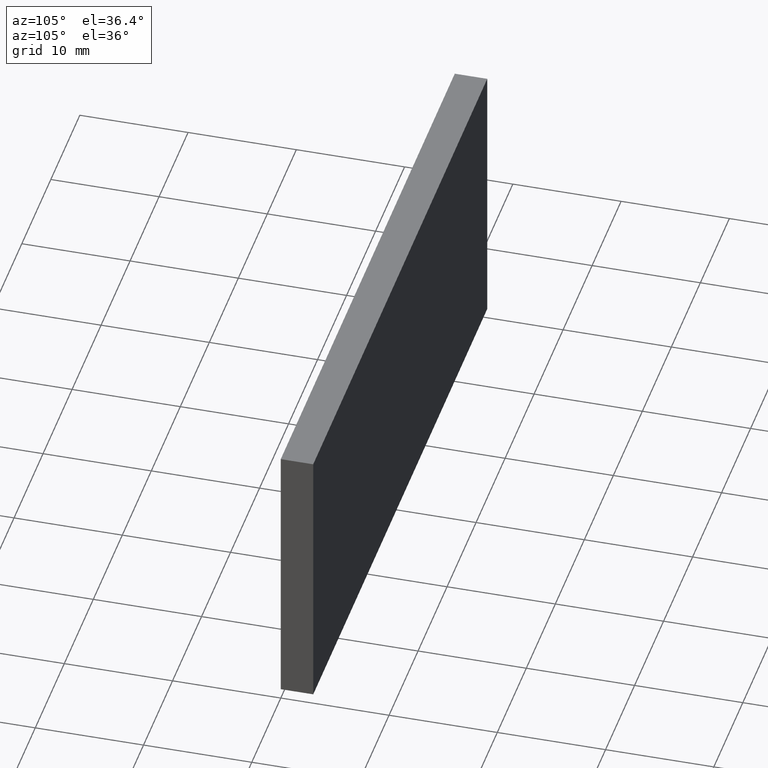
[diagram: clean part render]
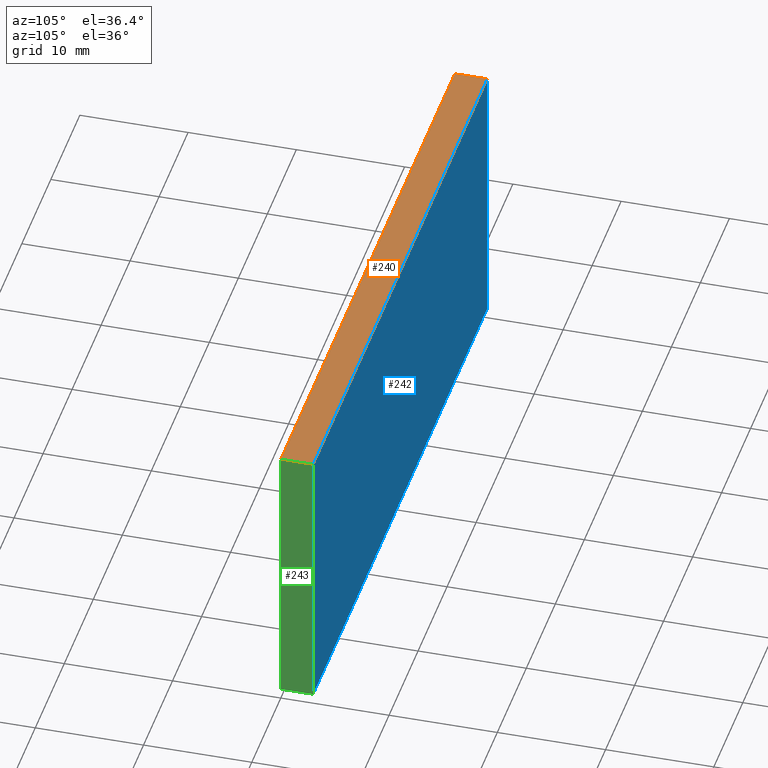
[diagram: same view with three faces highlighted in distinct colors, each labeled with its STEP entity id]
A machine part, auxiliary view with three faces highlighted in distinct colors.
Their STEP definitions:

[orange] entity #240 — the highlighted planar face has unit normal (0, 0, -1).
#18 = LINE ( 'NONE', #102, #24 ) ;
#22 = VECTOR ( 'NONE', #110, 1000.000000000000000 ) ;
#23 = LINE ( 'NONE', #129, #22 ) ;
#24 = VECTOR ( 'NONE', #103, 1000.000000000000000 ) ;
#29 = VECTOR ( 'NONE', #108, 1000.000000000000000 ) ;
#30 = LINE ( 'NONE', #106, #29 ) ;
#33 = VECTOR ( 'NONE', #104, 1000.000000000000000 ) ;
#34 = LINE ( 'NONE', #135, #33 ) ;
#71 = CARTESIAN_POINT ( 'NONE',  ( -30.00000000000000000, 3.000000000000000000, 12.75000000000000000 ) ) ;
#76 = CARTESIAN_POINT ( 'NONE',  ( 30.00000000000000000, 3.000000000000000000, 12.75000000000000000 ) ) ;
#78 = CARTESIAN_POINT ( 'NONE',  ( -30.00000000000000000, 3.000000000000000000, 12.75000000000000000 ) ) ;
#79 = CARTESIAN_POINT ( 'NONE',  ( -30.00000000000000000, 0.0000000000000000000, 12.75000000000000000 ) ) ;
#80 = CARTESIAN_POINT ( 'NONE',  ( 30.00000000000000000, 0.0000000000000000000, 12.75000000000000000 ) ) ;
#91 = VERTEX_POINT ( 'NONE', #78 ) ;
#93 = VERTEX_POINT ( 'NONE', #80 ) ;
#97 = VERTEX_POINT ( 'NONE', #79 ) ;
#102 = CARTESIAN_POINT ( 'NONE',  ( -30.00000000000000000, 3.000000000000000000, 12.75000000000000000 ) ) ;
#103 = DIRECTION ( 'NONE',  ( 0.0000000000000000000, 1.000000000000000000, 0.0000000000000000000 ) ) ;
#104 = DIRECTION ( 'NONE',  ( 0.0000000000000000000, 1.000000000000000000, -0.0000000000000000000 ) ) ;
#106 = CARTESIAN_POINT ( 'NONE',  ( -30.00000000000000000, 0.0000000000000000000, 12.75000000000000000 ) ) ;
#108 = DIRECTION ( 'NONE',  ( -1.000000000000000000, 0.0000000000000000000, -0.0000000000000000000 ) ) ;
#110 = DIRECTION ( 'NONE',  ( 1.000000000000000000, 0.0000000000000000000, 0.0000000000000000000 ) ) ;
#129 = CARTESIAN_POINT ( 'NONE',  ( 0.0000000000000000000, 3.000000000000000000, 12.75000000000000000 ) ) ;
#135 = CARTESIAN_POINT ( 'NONE',  ( 30.00000000000000000, 3.000000000000000000, 12.75000000000000000 ) ) ;
#140 = VERTEX_POINT ( 'NONE', #76 ) ;
#151 = PLANE ( 'NONE',  #277 ) ;
#153 = DIRECTION ( 'NONE',  ( -1.000000000000000000, 0.0000000000000000000, -0.0000000000000000000 ) ) ;
#154 = DIRECTION ( 'NONE',  ( 0.0000000000000000000, 0.0000000000000000000, -1.000000000000000000 ) ) ;
#173 = ORIENTED_EDGE ( 'NONE', *, *, #275, .F. ) ;
#174 = ORIENTED_EDGE ( 'NONE', *, *, #272, .F. ) ;
#187 = ORIENTED_EDGE ( 'NONE', *, *, #266, .F. ) ;
#203 = FACE_OUTER_BOUND ( 'NONE', #217, .T. ) ;
#217 = EDGE_LOOP ( 'NONE', ( #233, #173, #174, #187 ) ) ;
#233 = ORIENTED_EDGE ( 'NONE', *, *, #257, .T. ) ;
#240 = ADVANCED_FACE ( 'NONE', ( #203 ), #151, .F. ) ;
#257 = EDGE_CURVE ( 'NONE', #93, #140, #34, .T. ) ;
#266 = EDGE_CURVE ( 'NONE', #93, #97, #30, .T. ) ;
#272 = EDGE_CURVE ( 'NONE', #97, #91, #18, .T. ) ;
#275 = EDGE_CURVE ( 'NONE', #91, #140, #23, .T. ) ;
#277 = AXIS2_PLACEMENT_3D ( 'NONE', #71, #154, #153 ) ;

[blue] entity #242 — the highlighted planar face has unit normal (-0, 1, 0).
#10 = VECTOR ( 'NONE', #133, 1000.000000000000000 ) ;
#22 = VECTOR ( 'NONE', #110, 1000.000000000000000 ) ;
#23 = LINE ( 'NONE', #129, #22 ) ;
#32 = VECTOR ( 'NONE', #105, 1000.000000000000000 ) ;
#36 = VECTOR ( 'NONE', #126, 1000.000000000000000 ) ;
#37 = LINE ( 'NONE', #130, #32 ) ;
#39 = LINE ( 'NONE', #111, #36 ) ;
#46 = PLANE ( 'NONE',  #263 ) ;
#48 = DIRECTION ( 'NONE',  ( -0.0000000000000000000, 1.000000000000000000, 0.0000000000000000000 ) ) ;
#59 = DIRECTION ( 'NONE',  ( 0.0000000000000000000, -0.0000000000000000000, 1.000000000000000000 ) ) ;
#62 = CARTESIAN_POINT ( 'NONE',  ( 0.0000000000000000000, 3.000000000000000000, 0.0000000000000000000 ) ) ;
#76 = CARTESIAN_POINT ( 'NONE',  ( 30.00000000000000000, 3.000000000000000000, 12.75000000000000000 ) ) ;
#77 = VERTEX_POINT ( 'NONE', #138 ) ;
#78 = CARTESIAN_POINT ( 'NONE',  ( -30.00000000000000000, 3.000000000000000000, 12.75000000000000000 ) ) ;
#91 = VERTEX_POINT ( 'NONE', #78 ) ;
#95 = VERTEX_POINT ( 'NONE', #98 ) ;
#98 = CARTESIAN_POINT ( 'NONE',  ( -30.00000000000000000, 3.000000000000000000, -12.75000000000000000 ) ) ;
#105 = DIRECTION ( 'NONE',  ( -1.000000000000000000, -0.0000000000000000000, -0.0000000000000000000 ) ) ;
#110 = DIRECTION ( 'NONE',  ( 1.000000000000000000, 0.0000000000000000000, 0.0000000000000000000 ) ) ;
#111 = CARTESIAN_POINT ( 'NONE',  ( -30.00000000000000000, 3.000000000000000000, 0.0000000000000000000 ) ) ;
#119 = CARTESIAN_POINT ( 'NONE',  ( 30.00000000000000000, 3.000000000000000000, 0.0000000000000000000 ) ) ;
#126 = DIRECTION ( 'NONE',  ( 0.0000000000000000000, -0.0000000000000000000, 1.000000000000000000 ) ) ;
#129 = CARTESIAN_POINT ( 'NONE',  ( 0.0000000000000000000, 3.000000000000000000, 12.75000000000000000 ) ) ;
#130 = CARTESIAN_POINT ( 'NONE',  ( 0.0000000000000000000, 3.000000000000000000, -12.75000000000000000 ) ) ;
#133 = DIRECTION ( 'NONE',  ( -0.0000000000000000000, 0.0000000000000000000, -1.000000000000000000 ) ) ;
#138 = CARTESIAN_POINT ( 'NONE',  ( 30.00000000000000000, 3.000000000000000000, -12.75000000000000000 ) ) ;
#140 = VERTEX_POINT ( 'NONE', #76 ) ;
#177 = FACE_OUTER_BOUND ( 'NONE', #215, .T. ) ;
#188 = ORIENTED_EDGE ( 'NONE', *, *, #253, .T. ) ;
#196 = ORIENTED_EDGE ( 'NONE', *, *, #275, .T. ) ;
#197 = ORIENTED_EDGE ( 'NONE', *, *, #262, .T. ) ;
#215 = EDGE_LOOP ( 'NONE', ( #227, #197, #188, #196 ) ) ;
#225 = LINE ( 'NONE', #119, #10 ) ;
#227 = ORIENTED_EDGE ( 'NONE', *, *, #254, .T. ) ;
#242 = ADVANCED_FACE ( 'NONE', ( #177 ), #46, .T. ) ;
#253 = EDGE_CURVE ( 'NONE', #95, #91, #39, .T. ) ;
#254 = EDGE_CURVE ( 'NONE', #140, #77, #225, .T. ) ;
#262 = EDGE_CURVE ( 'NONE', #77, #95, #37, .T. ) ;
#263 = AXIS2_PLACEMENT_3D ( 'NONE', #62, #48, #59 ) ;
#275 = EDGE_CURVE ( 'NONE', #91, #140, #23, .T. ) ;

[green] entity #243 — the highlighted planar face has unit normal (-1, 0, 0).
#3 = VECTOR ( 'NONE', #118, 1000.000000000000000 ) ;
#4 = LINE ( 'NONE', #115, #3 ) ;
#10 = VECTOR ( 'NONE', #133, 1000.000000000000000 ) ;
#25 = VECTOR ( 'NONE', #123, 1000.000000000000000 ) ;
#26 = LINE ( 'NONE', #142, #25 ) ;
#33 = VECTOR ( 'NONE', #104, 1000.000000000000000 ) ;
#34 = LINE ( 'NONE', #135, #33 ) ;
#47 = PLANE ( 'NONE',  #276 ) ;
#56 = CARTESIAN_POINT ( 'NONE',  ( 30.00000000000000000, 3.000000000000000000, 12.75000000000000000 ) ) ;
#75 = DIRECTION ( 'NONE',  ( -1.000000000000000000, 0.0000000000000000000, 0.0000000000000000000 ) ) ;
#76 = CARTESIAN_POINT ( 'NONE',  ( 30.00000000000000000, 3.000000000000000000, 12.75000000000000000 ) ) ;
#77 = VERTEX_POINT ( 'NONE', #138 ) ;
#80 = CARTESIAN_POINT ( 'NONE',  ( 30.00000000000000000, 0.0000000000000000000, 12.75000000000000000 ) ) ;
#81 = CARTESIAN_POINT ( 'NONE',  ( 30.00000000000000000, 0.0000000000000000000, -12.75000000000000000 ) ) ;
#93 = VERTEX_POINT ( 'NONE', #80 ) ;
#96 = VERTEX_POINT ( 'NONE', #81 ) ;
#104 = DIRECTION ( 'NONE',  ( 0.0000000000000000000, 1.000000000000000000, -0.0000000000000000000 ) ) ;
#109 = DIRECTION ( 'NONE',  ( 0.0000000000000000000, 0.0000000000000000000, 1.000000000000000000 ) ) ;
#115 = CARTESIAN_POINT ( 'NONE',  ( 30.00000000000000000, 0.0000000000000000000, 12.75000000000000000 ) ) ;
#118 = DIRECTION ( 'NONE',  ( 0.0000000000000000000, 0.0000000000000000000, 1.000000000000000000 ) ) ;
#119 = CARTESIAN_POINT ( 'NONE',  ( 30.00000000000000000, 3.000000000000000000, 0.0000000000000000000 ) ) ;
#123 = DIRECTION ( 'NONE',  ( -0.0000000000000000000, 1.000000000000000000, 0.0000000000000000000 ) ) ;
#133 = DIRECTION ( 'NONE',  ( -0.0000000000000000000, 0.0000000000000000000, -1.000000000000000000 ) ) ;
#135 = CARTESIAN_POINT ( 'NONE',  ( 30.00000000000000000, 3.000000000000000000, 12.75000000000000000 ) ) ;
#138 = CARTESIAN_POINT ( 'NONE',  ( 30.00000000000000000, 3.000000000000000000, -12.75000000000000000 ) ) ;
#140 = VERTEX_POINT ( 'NONE', #76 ) ;
#142 = CARTESIAN_POINT ( 'NONE',  ( 30.00000000000000000, 3.000000000000000000, -12.75000000000000000 ) ) ;
#176 = ORIENTED_EDGE ( 'NONE', *, *, #247, .F. ) ;
#178 = ORIENTED_EDGE ( 'NONE', *, *, #254, .F. ) ;
#205 = FACE_OUTER_BOUND ( 'NONE', #216, .T. ) ;
#216 = EDGE_LOOP ( 'NONE', ( #236, #178, #229, #176 ) ) ;
#225 = LINE ( 'NONE', #119, #10 ) ;
#229 = ORIENTED_EDGE ( 'NONE', *, *, #257, .F. ) ;
#236 = ORIENTED_EDGE ( 'NONE', *, *, #270, .T. ) ;
#243 = ADVANCED_FACE ( 'NONE', ( #205 ), #47, .F. ) ;
#247 = EDGE_CURVE ( 'NONE', #96, #93, #4, .T. ) ;
#254 = EDGE_CURVE ( 'NONE', #140, #77, #225, .T. ) ;
#257 = EDGE_CURVE ( 'NONE', #93, #140, #34, .T. ) ;
#270 = EDGE_CURVE ( 'NONE', #96, #77, #26, .T. ) ;
#276 = AXIS2_PLACEMENT_3D ( 'NONE', #56, #75, #109 ) ;